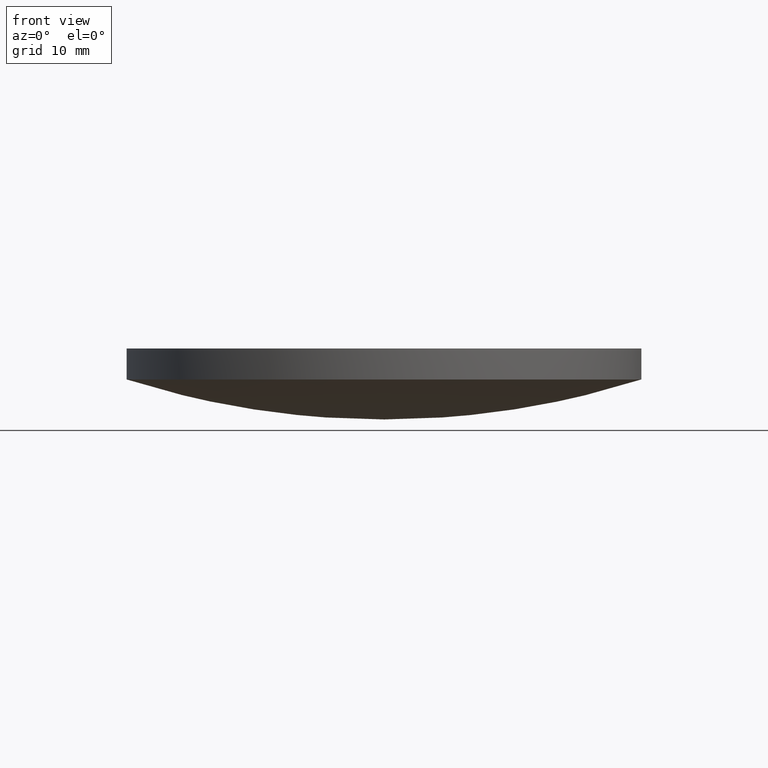
[diagram: clean part render]
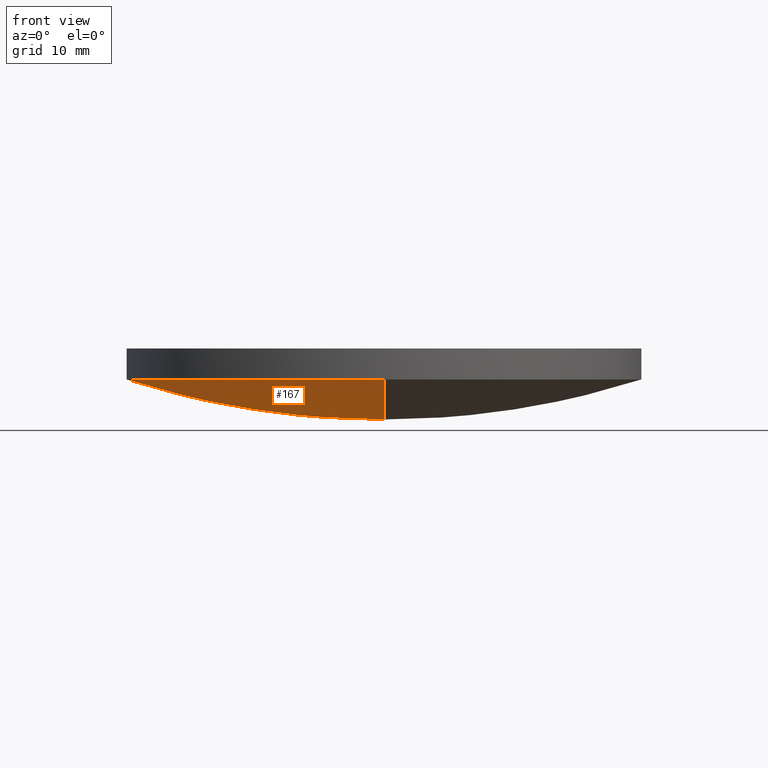
[diagram: same view with one face highlighted and labeled with its STEP entity id]
A machine part, front view. The second image highlights one B-rep face of the part: STEP entity #167.
In plain terms, the highlighted face is a freeform B-spline surface patch.
Its self-contained STEP definition (entity closure, byte-faithful):
#1 = CARTESIAN_POINT ( 'NONE',  ( -25.97290625815986000, -8.850211354717103500, 2.670315118084501300 ) ) ;
#2 = CARTESIAN_POINT ( 'NONE',  ( -8.268941173388352400, -25.69489275285958400, 4.044127186374963000 ) ) ;
#28 = CARTESIAN_POINT ( 'NONE',  ( -24.31237598715981800, -25.69489275285959500, 7.847603202286404800 ) ) ;
#31 = CARTESIAN_POINT ( 'NONE',  ( -17.56126240751323300, 8.850211354717100000, -0.02758173750897885100 ) ) ;
#48 = CARTESIAN_POINT ( 'NONE',  ( -16.43851520568674800, 25.69489275285958700, 5.322191449138530000 ) ) ;
#49 = ORIENTED_EDGE ( 'NONE', *, *, #186, .T. ) ;
#53 = CARTESIAN_POINT ( 'NONE',  ( 6.938893903907228400E-015, -8.850211354717094600, -1.392937526107908700 ) ) ;
#54 = EDGE_CURVE ( 'NONE', #115, #79, #75, .T. ) ;
#55 = CARTESIAN_POINT ( 'NONE',  ( 9.992007221626412800E-016, 4.884981308350691100E-015, 3.949545170682999400 ) ) ;
#58 = EDGE_LOOP ( 'NONE', ( #87, #101, #49 ) ) ;
#67 = CARTESIAN_POINT ( 'NONE',  ( 3.275035724031239300E-014, -25.39999999999999100, 3.949545170682996700 ) ) ;
#68 = CARTESIAN_POINT ( 'NONE',  ( -16.43851520568673400, -25.69489275285958700, 5.322191449138515800 ) ) ;
#71 = AXIS2_PLACEMENT_3D ( 'NONE', #157, #229, #134 ) ;
#73 = CARTESIAN_POINT ( 'NONE',  ( -8.833708151933844700, 8.850211354717101700, -1.392937526107892700 ) ) ;
#75 = CIRCLE ( 'NONE', #71, 25.39999999999999900 ) ;
#78 = AXIS2_PLACEMENT_3D ( 'NONE', #108, #209, #171 ) ;
#79 = VERTEX_POINT ( 'NONE', #99 ) ;
#86 = CARTESIAN_POINT ( 'NONE',  ( -6.938893903907228400E-015, 25.69489275285959800, 4.044127186374979000 ) ) ;
#87 = ORIENTED_EDGE ( 'NONE', *, *, #227, .F. ) ;
#88 = DIRECTION ( 'NONE',  ( 1.000000000000000000, 8.881784197001252300E-016, 0.0000000000000000000 ) ) ;
#93 = VERTEX_POINT ( 'NONE', #214 ) ;
#99 = CARTESIAN_POINT ( 'NONE',  ( -25.39999999999999900, 7.995584178184967200E-015, 3.949545170682999400 ) ) ;
#100 = CARTESIAN_POINT ( 'NONE',  ( -17.56126240751322600, -8.850211354717100000, -0.02758173750899141700 ) ) ;
#101 = ORIENTED_EDGE ( 'NONE', *, *, #54, .T. ) ;
#108 = CARTESIAN_POINT ( 'NONE',  ( 0.0000000000000000000, 0.0000000000000000000, 83.65000000000000600 ) ) ;
#112 = FACE_OUTER_BOUND ( 'NONE', #58, .T. ) ;
#115 = VERTEX_POINT ( 'NONE', #67 ) ;
#119 = DIRECTION ( 'NONE',  ( -0.0000000000000000000, -0.0000000000000000000, -1.000000000000000000 ) ) ;
#120 = CARTESIAN_POINT ( 'NONE',  ( -8.268941173388373800, 25.69489275285959100, 4.044127186374979000 ) ) ;
#126 = AXIS2_PLACEMENT_3D ( 'NONE', #55, #119, #88 ) ;
#134 = DIRECTION ( 'NONE',  ( 1.000000000000000000, 0.0000000000000000000, 0.0000000000000000000 ) ) ;
#139 = CIRCLE ( 'NONE', #126, 25.39999999999999900 ) ;
#157 = CARTESIAN_POINT ( 'NONE',  ( 9.992007221626412800E-016, 4.884981308350691100E-015, 3.949545170682999400 ) ) ;
#164 = CARTESIAN_POINT ( 'NONE',  ( 1.387778780781445700E-014, -25.69489275285958400, 4.044127186374964800 ) ) ;
#165 = CARTESIAN_POINT ( 'NONE',  ( -8.833708151933839400, -8.850211354717098200, -1.392937526107908700 ) ) ;
#167 = ADVANCED_FACE ( 'NONE', ( #112 ), #173, .T. ) ;
#171 = DIRECTION ( 'NONE',  ( 3.473828569973949900E-016, -1.000000000000000000, 0.0000000000000000000 ) ) ;
#173 =( BOUNDED_SURFACE ( )  B_SPLINE_SURFACE ( 3, 3, ( 
 ( #28, #68, #2, #164 ),
 ( #1, #100, #165, #53 ),
 ( #185, #31, #73, #200 ),
 ( #235, #48, #120, #86 ) ),
 .UNSPECIFIED., .F., .F., .T. ) 
 B_SPLINE_SURFACE_WITH_KNOTS ( ( 4, 4 ),
 ( 4, 4 ),
 ( 0.0000000000000000000, 1.000000000000000000 ),
 ( 0.0000000000000000000, 1.000000000000000000 ),
 .UNSPECIFIED. ) 
 GEOMETRIC_REPRESENTATION_ITEM ( )  RATIONAL_B_SPLINE_SURFACE ( (
 ( 1.000000000000000000, 0.9919887251175699700, 0.9919887251175699700, 1.000000000000000000),
 ( 0.9677694585664475800, 0.9600163914110513300, 0.9600163914110513300, 0.9677694585664475800),
 ( 0.9677694585664475800, 0.9600163914110513300, 0.9600163914110513300, 0.9677694585664475800),
 ( 1.000000000000000000, 0.9919887251175699700, 0.9919887251175699700, 1.000000000000000000) ) ) 
 REPRESENTATION_ITEM ( '' )  SURFACE ( )  );
#185 = CARTESIAN_POINT ( 'NONE',  ( -25.97290625815986300, 8.850211354717096400, 2.670315118084512800 ) ) ;
#186 = EDGE_CURVE ( 'NONE', #79, #93, #139, .T. ) ;
#190 = CIRCLE ( 'NONE', #78, 83.65000000000000600 ) ;
#200 = CARTESIAN_POINT ( 'NONE',  ( 0.0000000000000000000, 8.850211354717105300, -1.392937526107892900 ) ) ;
#209 = DIRECTION ( 'NONE',  ( 1.000000000000000000, 3.473828569973949900E-016, 3.002094871832189900E-016 ) ) ;
#214 = CARTESIAN_POINT ( 'NONE',  ( 1.510330810484473600E-014, 25.39999999999999900, 3.949545170682996700 ) ) ;
#227 = EDGE_CURVE ( 'NONE', #115, #93, #190, .T. ) ;
#229 = DIRECTION ( 'NONE',  ( -0.0000000000000000000, -0.0000000000000000000, -1.000000000000000000 ) ) ;
#235 = CARTESIAN_POINT ( 'NONE',  ( -24.31237598715983200, 25.69489275285958700, 7.847603202286418200 ) ) ;